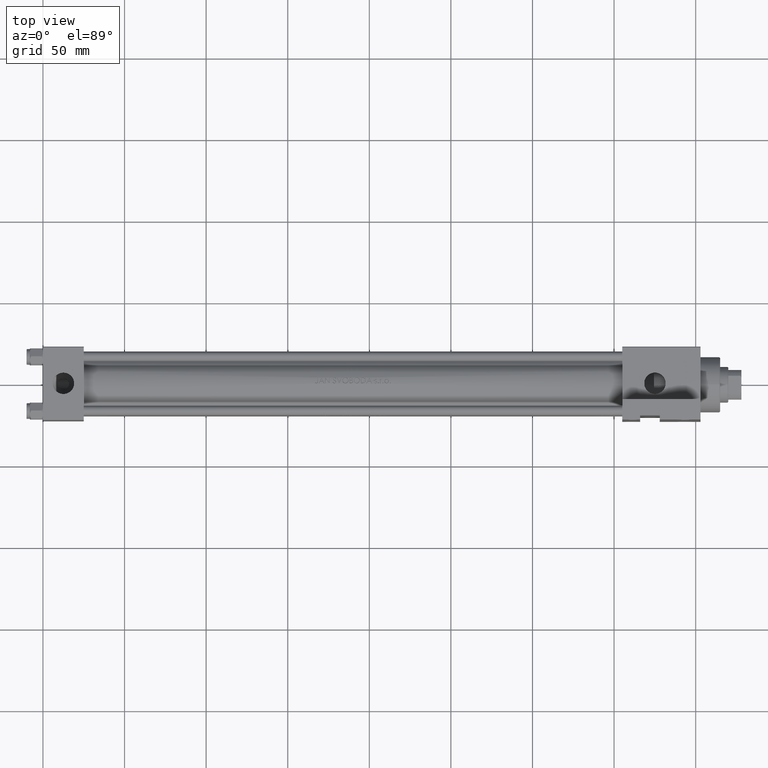
[diagram: clean part render]
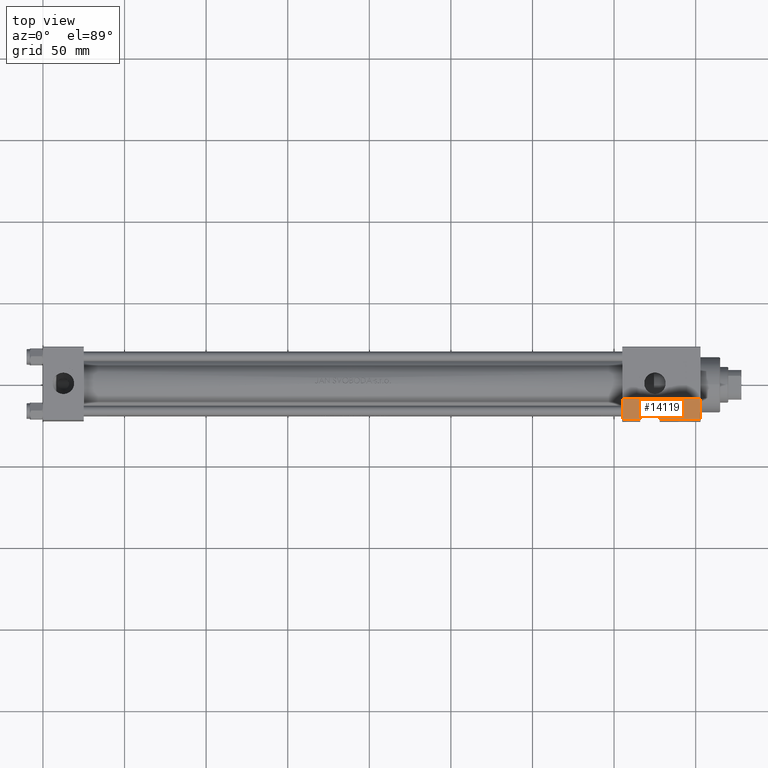
[diagram: same view with one face highlighted and labeled with its STEP entity id]
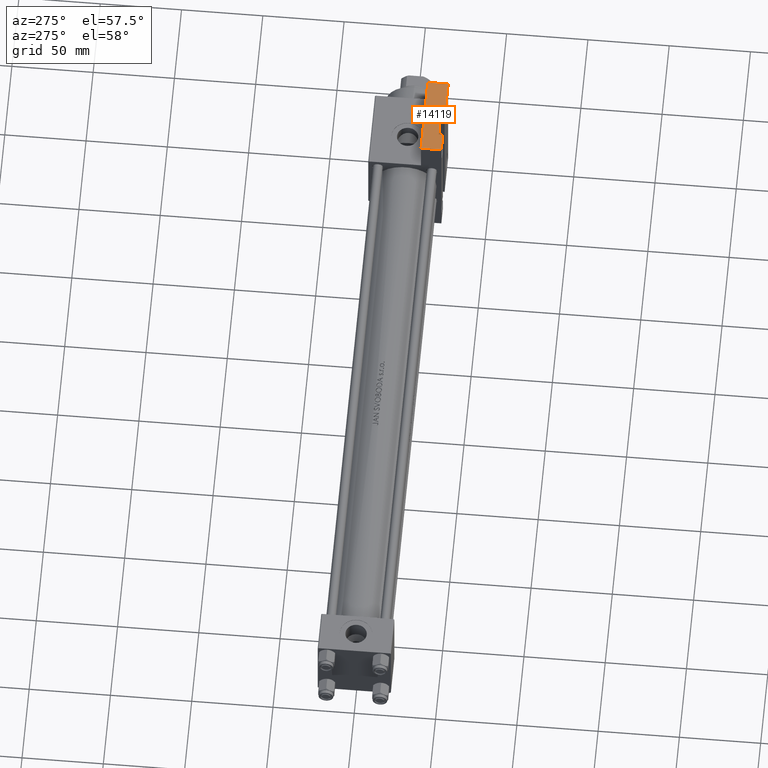
[diagram: same view with one face highlighted and labeled with its STEP entity id]
A machine part, top view. The second image highlights one B-rep face of the part: STEP entity #14119.
A second angle (auxiliary view) of the same face is appended — the face is thin or edge-on in the first view.
In plain terms, the highlighted planar face has unit normal (-0, 0, 1).
Its self-contained STEP definition (entity closure, byte-faithful):
#923 = VERTEX_POINT ( 'NONE', #5574 ) ;
#1627 = DIRECTION ( 'NONE',  ( 1.000000000000000000, -2.891205793294679312E-16, 0.000000000000000000 ) ) ;
#1667 = LINE ( 'NONE', #41980, #9181 ) ;
#2875 = CARTESIAN_POINT ( 'NONE',  ( 355.0000000000000568, -42.00000000000003553, -22.50000000000000000 ) ) ;
#3201 = EDGE_LOOP ( 'NONE', ( #4023, #4580, #45522, #30608, #41863, #39365, #14540, #19244 ) ) ;
#3310 = EDGE_CURVE ( 'NONE', #923, #37792, #29791, .T. ) ;
#3545 = EDGE_CURVE ( 'NONE', #923, #40950, #18848, .T. ) ;
#4023 = ORIENTED_EDGE ( 'NONE', *, *, #3310, .T. ) ;
#4580 = ORIENTED_EDGE ( 'NONE', *, *, #8113, .F. ) ;
#4993 = FACE_OUTER_BOUND ( 'NONE', #3201, .T. ) ;
#5574 = CARTESIAN_POINT ( 'NONE',  ( 378.0000000000000000, -41.99999999999997868, -20.00000000000000000 ) ) ;
#6383 = VECTOR ( 'NONE', #8676, 1000.000000000000000 ) ;
#6441 = VERTEX_POINT ( 'NONE', #46201 ) ;
#7577 = VECTOR ( 'NONE', #15070, 1000.000000000000000 ) ;
#8113 = EDGE_CURVE ( 'NONE', #32745, #37792, #17497, .T. ) ;
#8676 = DIRECTION ( 'NONE',  ( 0.000000000000000000, 0.000000000000000000, -1.000000000000000000 ) ) ;
#8976 = CARTESIAN_POINT ( 'NONE',  ( 378.0000000000000000, -41.99999999999997868, -22.50000000000000000 ) ) ;
#8988 = EDGE_CURVE ( 'NONE', #40950, #30047, #1667, .T. ) ;
#9181 = VECTOR ( 'NONE', #12754, 1000.000000000000000 ) ;
#9725 = EDGE_CURVE ( 'NONE', #6441, #21352, #40565, .T. ) ;
#10109 = DIRECTION ( 'NONE',  ( -1.000000000000000000, 2.891205793294679312E-16, -0.000000000000000000 ) ) ;
#12220 = VECTOR ( 'NONE', #14776, 1000.000000000000000 ) ;
#12754 = DIRECTION ( 'NONE',  ( -0.000000000000000000, -0.000000000000000000, -1.000000000000000000 ) ) ;
#14119 = ADVANCED_FACE ( 'NONE', ( #4993 ), #34681, .T. ) ;
#14540 = ORIENTED_EDGE ( 'NONE', *, *, #8988, .F. ) ;
#14776 = DIRECTION ( 'NONE',  ( -1.000000000000000000, -0.000000000000000000, -0.000000000000000000 ) ) ;
#14977 = CARTESIAN_POINT ( 'NONE',  ( 355.0000000000000568, -42.00000000000003553, -22.50000000000000000 ) ) ;
#15070 = DIRECTION ( 'NONE',  ( -0.000000000000000000, -0.000000000000000000, -1.000000000000000000 ) ) ;
#15962 = CARTESIAN_POINT ( 'NONE',  ( 403.0000000000000000, -42.00000000000004974, -22.50000000000000000 ) ) ;
#16942 = VECTOR ( 'NONE', #40803, 1000.000000000000000 ) ;
#17497 = LINE ( 'NONE', #36569, #40122 ) ;
#18810 = CARTESIAN_POINT ( 'NONE',  ( 355.0000000000000568, -42.00000000000003553, -9.999999999999998224 ) ) ;
#18848 = LINE ( 'NONE', #33354, #12220 ) ;
#19055 = LINE ( 'NONE', #37422, #42727 ) ;
#19244 = ORIENTED_EDGE ( 'NONE', *, *, #3545, .F. ) ;
#20167 = DIRECTION ( 'NONE',  ( -2.891205793294679312E-16, -1.000000000000000000, 0.000000000000000000 ) ) ;
#20816 = EDGE_CURVE ( 'NONE', #6441, #32745, #19055, .T. ) ;
#21352 = VERTEX_POINT ( 'NONE', #40644 ) ;
#23553 = CARTESIAN_POINT ( 'NONE',  ( 355.0000000000000568, -42.00000000000003553, -9.999999999999998224 ) ) ;
#24370 = CARTESIAN_POINT ( 'NONE',  ( 366.0000000000000568, -41.99999999999997868, -20.00000000000000000 ) ) ;
#25486 = EDGE_CURVE ( 'NONE', #30047, #41016, #39800, .T. ) ;
#25677 = DIRECTION ( 'NONE',  ( -1.000000000000000000, 2.891205793294679312E-16, -0.000000000000000000 ) ) ;
#29791 = LINE ( 'NONE', #40180, #7577 ) ;
#30047 = VERTEX_POINT ( 'NONE', #30454 ) ;
#30454 = CARTESIAN_POINT ( 'NONE',  ( 366.0000000000000568, -41.99999999999997868, -22.50000000000000000 ) ) ;
#30608 = ORIENTED_EDGE ( 'NONE', *, *, #9725, .T. ) ;
#32745 = VERTEX_POINT ( 'NONE', #15962 ) ;
#33354 = CARTESIAN_POINT ( 'NONE',  ( 366.0000000000000568, -41.99999999999997868, -20.00000000000000000 ) ) ;
#33579 = CARTESIAN_POINT ( 'NONE',  ( 355.0000000000000568, -42.00000000000003553, -9.999999999999998224 ) ) ;
#33802 = DIRECTION ( 'NONE',  ( 0.000000000000000000, 0.000000000000000000, -1.000000000000000000 ) ) ;
#34279 = LINE ( 'NONE', #33579, #6383 ) ;
#34681 = PLANE ( 'NONE',  #34782 ) ;
#34782 = AXIS2_PLACEMENT_3D ( 'NONE', #23553, #20167, #1627 ) ;
#34937 = EDGE_CURVE ( 'NONE', #21352, #41016, #34279, .T. ) ;
#36569 = CARTESIAN_POINT ( 'NONE',  ( 355.0000000000000568, -42.00000000000003553, -22.50000000000000000 ) ) ;
#37422 = CARTESIAN_POINT ( 'NONE',  ( 403.0000000000000000, -42.00000000000004974, -9.999999999999998224 ) ) ;
#37792 = VERTEX_POINT ( 'NONE', #8976 ) ;
#39365 = ORIENTED_EDGE ( 'NONE', *, *, #25486, .F. ) ;
#39661 = VECTOR ( 'NONE', #10109, 1000.000000000000000 ) ;
#39800 = LINE ( 'NONE', #2875, #39661 ) ;
#40122 = VECTOR ( 'NONE', #25677, 1000.000000000000000 ) ;
#40180 = CARTESIAN_POINT ( 'NONE',  ( 378.0000000000000000, -41.99999999999997868, -20.00000000000000000 ) ) ;
#40565 = LINE ( 'NONE', #18810, #16942 ) ;
#40644 = CARTESIAN_POINT ( 'NONE',  ( 355.0000000000000568, -42.00000000000003553, -9.999999999999998224 ) ) ;
#40803 = DIRECTION ( 'NONE',  ( -1.000000000000000000, 2.891205793294679312E-16, -0.000000000000000000 ) ) ;
#40950 = VERTEX_POINT ( 'NONE', #24370 ) ;
#41016 = VERTEX_POINT ( 'NONE', #14977 ) ;
#41863 = ORIENTED_EDGE ( 'NONE', *, *, #34937, .T. ) ;
#41980 = CARTESIAN_POINT ( 'NONE',  ( 366.0000000000000568, -41.99999999999997868, -20.00000000000000000 ) ) ;
#42727 = VECTOR ( 'NONE', #33802, 1000.000000000000000 ) ;
#45522 = ORIENTED_EDGE ( 'NONE', *, *, #20816, .F. ) ;
#46201 = CARTESIAN_POINT ( 'NONE',  ( 403.0000000000000000, -42.00000000000004974, -9.999999999999998224 ) ) ;